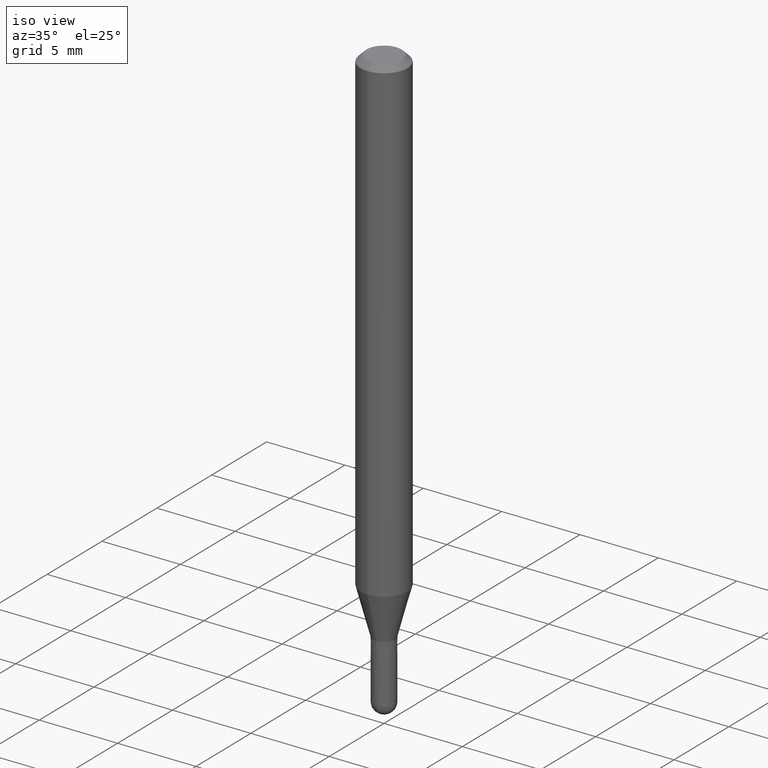
[diagram: clean part render]
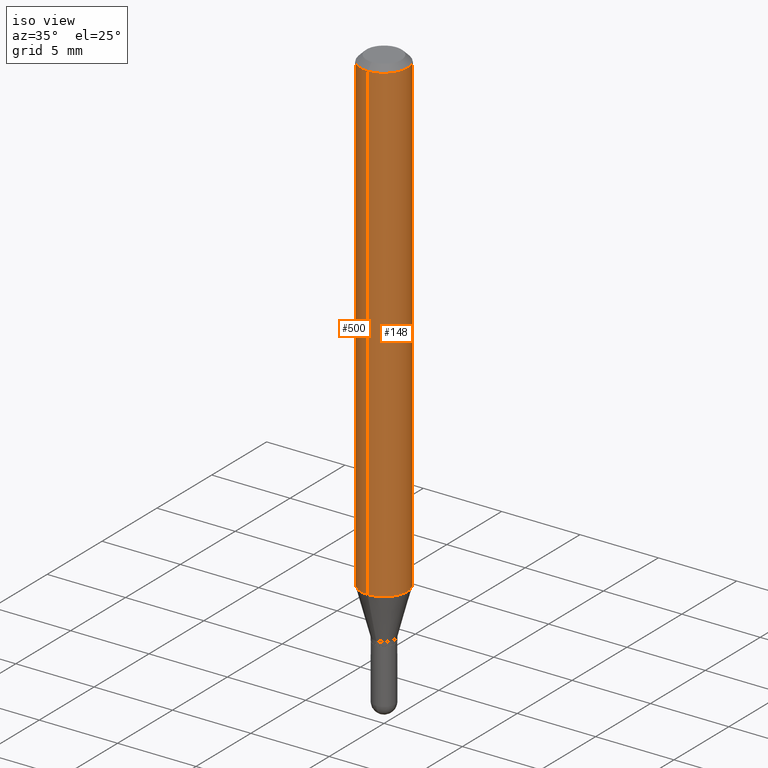
[diagram: same view with one multi-face feature highlighted, each face labeled with its STEP entity id]
A machine part, iso view. The highlighted faces form ONE feature: a constant-radius fillet chain: 2 tangent blend faces with common blend radius 1.4999 mm. The faces share edges in the B-rep.
Their STEP definitions:
[1] entity #148 (Cylinder):
#2 = DIRECTION ( 'NONE',  ( -6.982962677686265922E-15, -1.000000000000000000, 3.491568029886026969E-15 ) ) ;
#67 = CYLINDRICAL_SURFACE ( 'NONE', #322, 0.05904999999999999832 ) ;
#100 = CARTESIAN_POINT ( 'NONE',  ( -4.123439461173739834E-16, -0.05904999999999999832, 2.061770921647698955E-16 ) ) ;
#103 = DIRECTION ( 'NONE',  ( -2.445408270153443463E-29, 3.491568029886026969E-15, 1.000000000000000000 ) ) ;
#109 = LINE ( 'NONE', #264, #286 ) ;
#110 = VERTEX_POINT ( 'NONE', #501 ) ;
#121 = AXIS2_PLACEMENT_3D ( 'NONE', #215, #103, #259 ) ;
#122 = DIRECTION ( 'NONE',  ( -2.445408270153443743E-29, 3.491568029886026969E-15, 1.000000000000000000 ) ) ;
#148 = ADVANCED_FACE ( 'NONE', ( #423 ), #67, .T. ) ;
#160 = CARTESIAN_POINT ( 'NONE',  ( 0.000000000000000000, 0.000000000000000000, 0.000000000000000000 ) ) ;
#165 = CARTESIAN_POINT ( 'NONE',  ( 4.195754854663683357E-16, 0.05904999999999576560, -1.203540399561579877 ) ) ;
#170 = DIRECTION ( 'NONE',  ( -6.982962677686265922E-15, -1.000000000000000000, 4.626330217890369336E-15 ) ) ;
#181 = LINE ( 'NONE', #100, #472 ) ;
#188 = DIRECTION ( 'NONE',  ( -2.445408270153443743E-29, 3.491568029886026969E-15, 1.000000000000000000 ) ) ;
#214 = EDGE_CURVE ( 'NONE', #442, #110, #181, .T. ) ;
#215 = CARTESIAN_POINT ( 'NONE',  ( 3.668112405230187738E-31, -5.237352044829072796E-17, -0.01500000000000009139 ) ) ;
#220 = DIRECTION ( 'NONE',  ( -2.445408270153443463E-29, 3.491568029886026969E-15, 1.000000000000000000 ) ) ;
#245 = ORIENTED_EDGE ( 'NONE', *, *, #508, .T. ) ;
#257 = VERTEX_POINT ( 'NONE', #165 ) ;
#259 = DIRECTION ( 'NONE',  ( -6.982962677686265922E-15, -1.000000000000000000, 3.505890868245046092E-15 ) ) ;
#264 = CARTESIAN_POINT ( 'NONE',  ( 4.195754854663390985E-16, 0.05904999999999999832, -2.061770921647698955E-16 ) ) ;
#265 = VERTEX_POINT ( 'NONE', #288 ) ;
#286 = VECTOR ( 'NONE', #188, 39.37007874015748143 ) ;
#288 = CARTESIAN_POINT ( 'NONE',  ( 4.195754854663686808E-16, 0.05904999999999994975, -0.01500000000000029955 ) ) ;
#298 = EDGE_LOOP ( 'NONE', ( #366, #245, #417, #329 ) ) ;
#305 = CIRCLE ( 'NONE', #312, 0.05904999999999999832 ) ;
#312 = AXIS2_PLACEMENT_3D ( 'NONE', #422, #220, #170 ) ;
#322 = AXIS2_PLACEMENT_3D ( 'NONE', #160, #479, #2 ) ;
#329 = ORIENTED_EDGE ( 'NONE', *, *, #214, .F. ) ;
#345 = CIRCLE ( 'NONE', #121, 0.05904999999999999832 ) ;
#366 = ORIENTED_EDGE ( 'NONE', *, *, #392, .T. ) ;
#388 = EDGE_CURVE ( 'NONE', #110, #265, #345, .T. ) ;
#392 = EDGE_CURVE ( 'NONE', #442, #257, #305, .T. ) ;
#417 = ORIENTED_EDGE ( 'NONE', *, *, #388, .F. ) ;
#422 = CARTESIAN_POINT ( 'NONE',  ( 2.943147646551666827E-29, -4.202243181785466400E-15, -1.203540399561579655 ) ) ;
#423 = FACE_OUTER_BOUND ( 'NONE', #298, .T. ) ;
#442 = VERTEX_POINT ( 'NONE', #473 ) ;
#472 = VECTOR ( 'NONE', #122, 39.37007874015748143 ) ;
#473 = CARTESIAN_POINT ( 'NONE',  ( -4.123439461173447462E-16, -0.05905000000000423105, -1.203540399561579655 ) ) ;
#479 = DIRECTION ( 'NONE',  ( -2.445408270153443463E-29, 3.491568029886026969E-15, 1.000000000000000000 ) ) ;
#501 = CARTESIAN_POINT ( 'NONE',  ( -4.123439461173736383E-16, -0.05905000000000005383, -0.01499999999999988495 ) ) ;
#508 = EDGE_CURVE ( 'NONE', #257, #265, #109, .T. ) ;
[2] entity #500 (Cylinder):
#21 = CIRCLE ( 'NONE', #330, 0.05904999999999999832 ) ;
#28 = EDGE_CURVE ( 'NONE', #257, #442, #21, .T. ) ;
#29 = EDGE_LOOP ( 'NONE', ( #51, #115, #389, #310 ) ) ;
#33 = CYLINDRICAL_SURFACE ( 'NONE', #444, 0.05904999999999999832 ) ;
#38 = AXIS2_PLACEMENT_3D ( 'NONE', #486, #446, #492 ) ;
#51 = ORIENTED_EDGE ( 'NONE', *, *, #508, .F. ) ;
#78 = CARTESIAN_POINT ( 'NONE',  ( 0.000000000000000000, 0.000000000000000000, 0.000000000000000000 ) ) ;
#100 = CARTESIAN_POINT ( 'NONE',  ( -4.123439461173739834E-16, -0.05904999999999999832, 2.061770921647698955E-16 ) ) ;
#109 = LINE ( 'NONE', #264, #286 ) ;
#110 = VERTEX_POINT ( 'NONE', #501 ) ;
#115 = ORIENTED_EDGE ( 'NONE', *, *, #28, .T. ) ;
#122 = DIRECTION ( 'NONE',  ( -2.445408270153443743E-29, 3.491568029886026969E-15, 1.000000000000000000 ) ) ;
#132 = CARTESIAN_POINT ( 'NONE',  ( 2.943147646551666827E-29, -4.202243181785466400E-15, -1.203540399561579655 ) ) ;
#165 = CARTESIAN_POINT ( 'NONE',  ( 4.195754854663683357E-16, 0.05904999999999576560, -1.203540399561579877 ) ) ;
#181 = LINE ( 'NONE', #100, #472 ) ;
#186 = DIRECTION ( 'NONE',  ( -6.982962677686265922E-15, -1.000000000000000000, 3.491568029886026969E-15 ) ) ;
#188 = DIRECTION ( 'NONE',  ( -2.445408270153443743E-29, 3.491568029886026969E-15, 1.000000000000000000 ) ) ;
#214 = EDGE_CURVE ( 'NONE', #442, #110, #181, .T. ) ;
#216 = CIRCLE ( 'NONE', #38, 0.05904999999999999832 ) ;
#229 = DIRECTION ( 'NONE',  ( -6.982962677686265922E-15, -1.000000000000000000, 4.626330217890369336E-15 ) ) ;
#240 = DIRECTION ( 'NONE',  ( -2.445408270153443463E-29, 3.491568029886026969E-15, 1.000000000000000000 ) ) ;
#257 = VERTEX_POINT ( 'NONE', #165 ) ;
#264 = CARTESIAN_POINT ( 'NONE',  ( 4.195754854663390985E-16, 0.05904999999999999832, -2.061770921647698955E-16 ) ) ;
#265 = VERTEX_POINT ( 'NONE', #288 ) ;
#286 = VECTOR ( 'NONE', #188, 39.37007874015748143 ) ;
#288 = CARTESIAN_POINT ( 'NONE',  ( 4.195754854663686808E-16, 0.05904999999999994975, -0.01500000000000029955 ) ) ;
#310 = ORIENTED_EDGE ( 'NONE', *, *, #316, .F. ) ;
#316 = EDGE_CURVE ( 'NONE', #265, #110, #216, .T. ) ;
#330 = AXIS2_PLACEMENT_3D ( 'NONE', #132, #240, #229 ) ;
#382 = FACE_OUTER_BOUND ( 'NONE', #29, .T. ) ;
#389 = ORIENTED_EDGE ( 'NONE', *, *, #214, .T. ) ;
#428 = DIRECTION ( 'NONE',  ( -2.445408270153443463E-29, 3.491568029886026969E-15, 1.000000000000000000 ) ) ;
#442 = VERTEX_POINT ( 'NONE', #473 ) ;
#444 = AXIS2_PLACEMENT_3D ( 'NONE', #78, #428, #186 ) ;
#446 = DIRECTION ( 'NONE',  ( -2.445408270153443463E-29, 3.491568029886026969E-15, 1.000000000000000000 ) ) ;
#472 = VECTOR ( 'NONE', #122, 39.37007874015748143 ) ;
#473 = CARTESIAN_POINT ( 'NONE',  ( -4.123439461173447462E-16, -0.05905000000000423105, -1.203540399561579655 ) ) ;
#486 = CARTESIAN_POINT ( 'NONE',  ( 3.668112405230187738E-31, -5.237352044829072796E-17, -0.01500000000000009139 ) ) ;
#492 = DIRECTION ( 'NONE',  ( -6.982962677686265922E-15, -1.000000000000000000, 3.505890868245046092E-15 ) ) ;
#500 = ADVANCED_FACE ( 'NONE', ( #382 ), #33, .T. ) ;
#501 = CARTESIAN_POINT ( 'NONE',  ( -4.123439461173736383E-16, -0.05905000000000005383, -0.01499999999999988495 ) ) ;
#508 = EDGE_CURVE ( 'NONE', #257, #265, #109, .T. ) ;